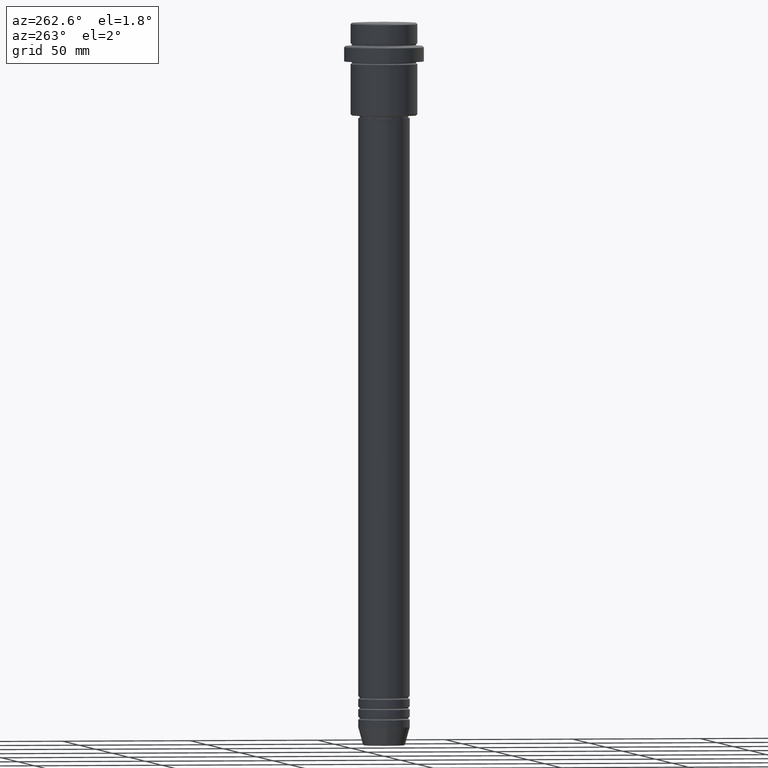
[diagram: clean part render]
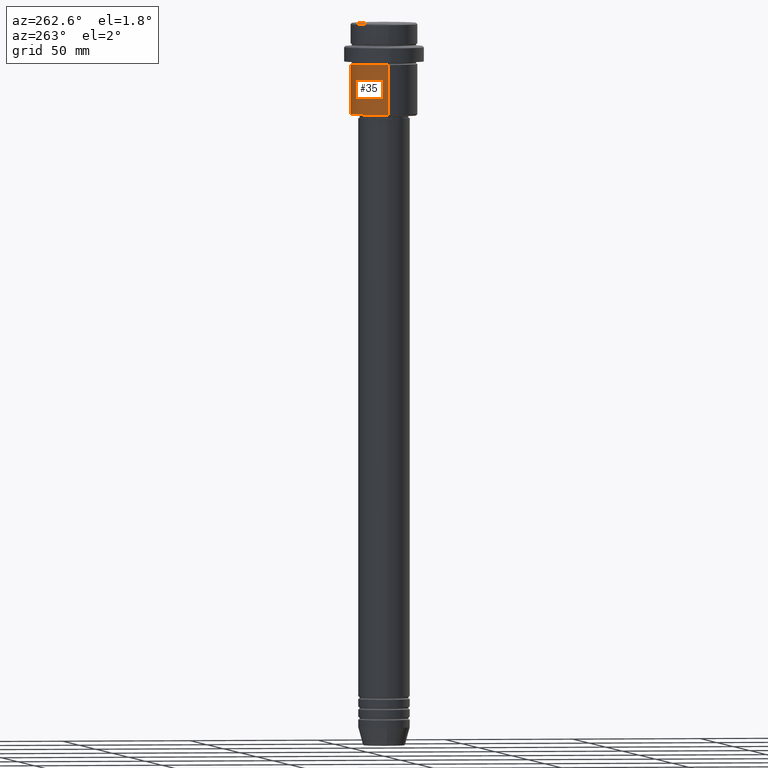
[diagram: same view with one face highlighted and labeled with its STEP entity id]
A machine part, auxiliary view. The second image highlights one B-rep face of the part: STEP entity #35.
In plain terms, the highlighted cylindrical surface (edge-blend (fillet) strip) has radius 13 mm, axis along (-0, -0, 1).
Its self-contained STEP definition (entity closure, byte-faithful):
#35 = ADVANCED_FACE ( 'NONE', ( #270 ), #427, .T. ) ;
#56 = VERTEX_POINT ( 'NONE', #820 ) ;
#76 = CARTESIAN_POINT ( 'NONE',  ( 13.00000000000000000, 0.000000000000000000, -16.00000000000000000 ) ) ;
#80 = CARTESIAN_POINT ( 'NONE',  ( 0.000000000000000000, 0.000000000000000000, 0.000000000000000000 ) ) ;
#141 = VERTEX_POINT ( 'NONE', #1132 ) ;
#197 = ORIENTED_EDGE ( 'NONE', *, *, #251, .F. ) ;
#206 = DIRECTION ( 'NONE',  ( -0.000000000000000000, -0.000000000000000000, 1.000000000000000000 ) ) ;
#221 = VERTEX_POINT ( 'NONE', #299 ) ;
#251 = EDGE_CURVE ( 'NONE', #141, #1108, #844, .T. ) ;
#270 = FACE_OUTER_BOUND ( 'NONE', #1019, .T. ) ;
#286 = AXIS2_PLACEMENT_3D ( 'NONE', #878, #206, #1191 ) ;
#299 = CARTESIAN_POINT ( 'NONE',  ( -13.00000000000000000, 1.592040838891559095E-15, -16.00000000000000000 ) ) ;
#347 = CARTESIAN_POINT ( 'NONE',  ( -13.00000000000000000, 1.592040838891559095E-15, 0.000000000000000000 ) ) ;
#379 = DIRECTION ( 'NONE',  ( 1.000000000000000000, 0.000000000000000000, 0.000000000000000000 ) ) ;
#383 = CARTESIAN_POINT ( 'NONE',  ( 0.000000000000000000, 0.000000000000000000, -35.50000000000004263 ) ) ;
#386 = EDGE_CURVE ( 'NONE', #56, #221, #1203, .T. ) ;
#391 = DIRECTION ( 'NONE',  ( -0.000000000000000000, -0.000000000000000000, 1.000000000000000000 ) ) ;
#427 = CYLINDRICAL_SURFACE ( 'NONE', #765, 13.00000000000000000 ) ;
#575 = EDGE_CURVE ( 'NONE', #141, #56, #1079, .T. ) ;
#599 = DIRECTION ( 'NONE',  ( -1.000000000000000000, 0.000000000000000000, 0.000000000000000000 ) ) ;
#694 = AXIS2_PLACEMENT_3D ( 'NONE', #383, #1138, #599 ) ;
#765 = AXIS2_PLACEMENT_3D ( 'NONE', #80, #391, #379 ) ;
#820 = CARTESIAN_POINT ( 'NONE',  ( -13.00000000000000000, 1.592040838891559095E-15, -35.50000000000004263 ) ) ;
#838 = ORIENTED_EDGE ( 'NONE', *, *, #386, .T. ) ;
#844 = LINE ( 'NONE', #1068, #963 ) ;
#868 = DIRECTION ( 'NONE',  ( -0.000000000000000000, -0.000000000000000000, 1.000000000000000000 ) ) ;
#875 = VECTOR ( 'NONE', #868, 1000.000000000000000 ) ;
#878 = CARTESIAN_POINT ( 'NONE',  ( 0.000000000000000000, 0.000000000000000000, -16.00000000000000000 ) ) ;
#903 = ORIENTED_EDGE ( 'NONE', *, *, #1304, .F. ) ;
#963 = VECTOR ( 'NONE', #1380, 1000.000000000000000 ) ;
#1019 = EDGE_LOOP ( 'NONE', ( #1179, #838, #903, #197 ) ) ;
#1068 = CARTESIAN_POINT ( 'NONE',  ( 13.00000000000000000, 0.000000000000000000, 0.000000000000000000 ) ) ;
#1079 = CIRCLE ( 'NONE', #694, 13.00000000000000000 ) ;
#1085 = CIRCLE ( 'NONE', #286, 13.00000000000000000 ) ;
#1108 = VERTEX_POINT ( 'NONE', #76 ) ;
#1132 = CARTESIAN_POINT ( 'NONE',  ( 13.00000000000000000, 0.000000000000000000, -35.50000000000004263 ) ) ;
#1138 = DIRECTION ( 'NONE',  ( -0.000000000000000000, -0.000000000000000000, 1.000000000000000000 ) ) ;
#1179 = ORIENTED_EDGE ( 'NONE', *, *, #575, .T. ) ;
#1191 = DIRECTION ( 'NONE',  ( 1.000000000000000000, 0.000000000000000000, 0.000000000000000000 ) ) ;
#1203 = LINE ( 'NONE', #347, #875 ) ;
#1304 = EDGE_CURVE ( 'NONE', #1108, #221, #1085, .T. ) ;
#1380 = DIRECTION ( 'NONE',  ( -0.000000000000000000, -0.000000000000000000, 1.000000000000000000 ) ) ;